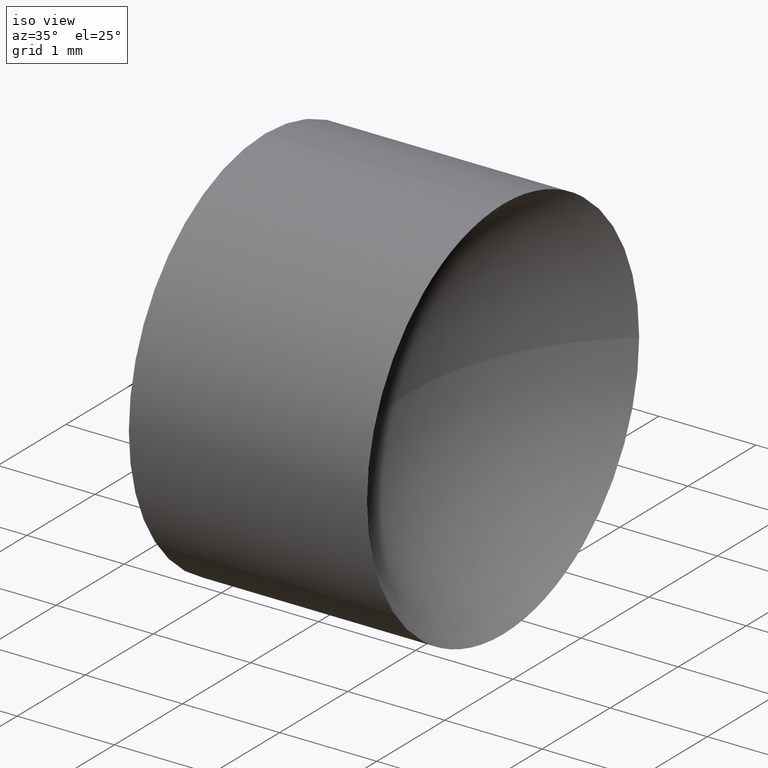
[diagram: clean part render]
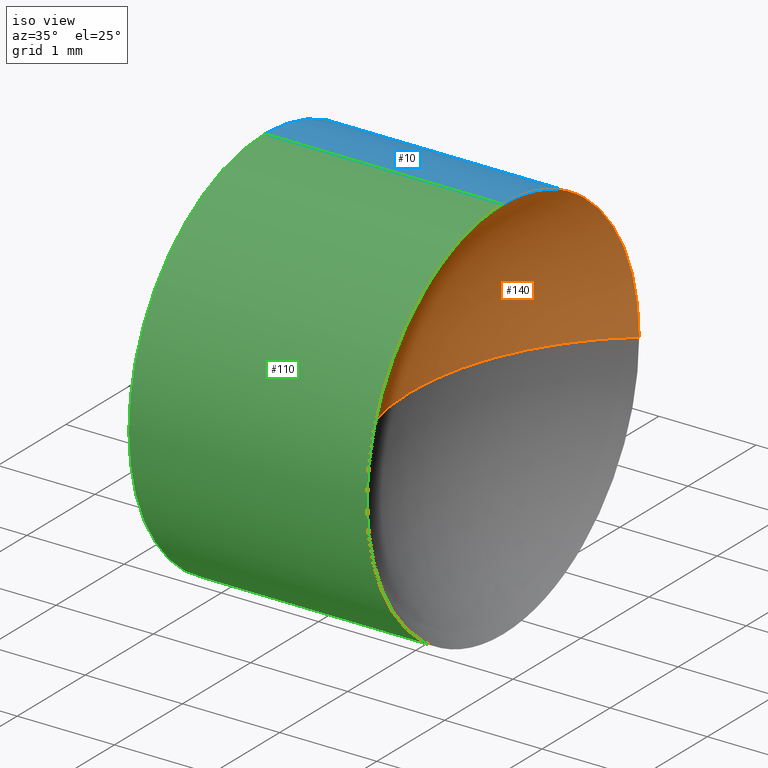
[diagram: same view with three faces highlighted in distinct colors, each labeled with its STEP entity id]
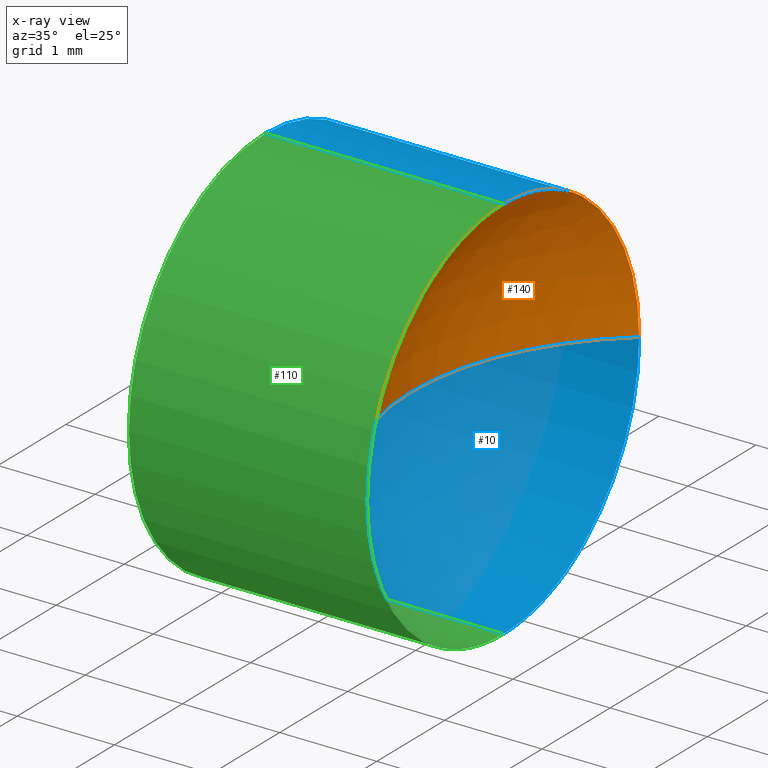
[diagram: x-ray of the same camera — body ghosted, the three highlighted faces saturated]
A machine part, iso view with three faces highlighted in distinct colors.
The next image is the same camera in x-ray (body ghosted, the three faces saturated) — at least one of them is partly hidden behind the body in this view.
Their STEP definitions:

[orange] entity #140 — the highlighted spherical surface has radius 2.5803 mm.
#2 = CARTESIAN_POINT ( 'NONE',  ( 13.53286323056900100, 8.522260287298740500, 2.449293598294707900E-016 ) ) ;
#7 = EDGE_CURVE ( 'NONE', #116, #88, #74, .T. ) ;
#9 = CARTESIAN_POINT ( 'NONE',  ( 13.53286323056900100, 6.522260287298739600, 0.0000000000000000000 ) ) ;
#24 = DIRECTION ( 'NONE',  ( -1.000000000000000000, -0.0000000000000000000, -0.0000000000000000000 ) ) ;
#25 = AXIS2_PLACEMENT_3D ( 'NONE', #127, #30, #43 ) ;
#28 = CIRCLE ( 'NONE', #83, 2.000000000000000900 ) ;
#30 = DIRECTION ( 'NONE',  ( 0.0000000000000000000, -1.224646799147353200E-016, 1.000000000000000000 ) ) ;
#32 = DIRECTION ( 'NONE',  ( 0.0000000000000000000, -1.000000000000000000, 0.0000000000000000000 ) ) ;
#43 = DIRECTION ( 'NONE',  ( 0.0000000000000000000, -1.000000000000000000, -1.224646799147353500E-016 ) ) ;
#46 = ORIENTED_EDGE ( 'NONE', *, *, #7, .F. ) ;
#60 = CIRCLE ( 'NONE', #25, 2.580263157894739900 ) ;
#63 = CARTESIAN_POINT ( 'NONE',  ( 13.53286323056900100, 6.522260287298739600, 2.000000000000000900 ) ) ;
#67 = CARTESIAN_POINT ( 'NONE',  ( 13.53286323056900100, 6.522260287298739600, 0.0000000000000000000 ) ) ;
#68 = EDGE_CURVE ( 'NONE', #163, #134, #60, .T. ) ;
#73 = AXIS2_PLACEMENT_3D ( 'NONE', #9, #24, #136 ) ;
#74 = CIRCLE ( 'NONE', #73, 2.000000000000000900 ) ;
#78 = SPHERICAL_SURFACE ( 'NONE', #157, 2.580263157894739900 ) ;
#83 = AXIS2_PLACEMENT_3D ( 'NONE', #67, #164, #148 ) ;
#84 = EDGE_CURVE ( 'NONE', #116, #134, #99, .T. ) ;
#86 = CARTESIAN_POINT ( 'NONE',  ( 13.53286323056900100, 4.522260287298738700, 0.0000000000000000000 ) ) ;
#88 = VERTEX_POINT ( 'NONE', #63 ) ;
#90 = DIRECTION ( 'NONE',  ( -1.000000000000000000, 0.0000000000000000000, 0.0000000000000000000 ) ) ;
#91 = DIRECTION ( 'NONE',  ( 0.0000000000000000000, 0.0000000000000000000, 1.000000000000000000 ) ) ;
#99 = CIRCLE ( 'NONE', #128, 2.580263157894739900 ) ;
#102 = CARTESIAN_POINT ( 'NONE',  ( 15.16312638846374100, 6.522260287298739600, 0.0000000000000000000 ) ) ;
#114 = CARTESIAN_POINT ( 'NONE',  ( 12.58286323056900200, 6.522260287298739600, 0.0000000000000000000 ) ) ;
#116 = VERTEX_POINT ( 'NONE', #86 ) ;
#122 = ORIENTED_EDGE ( 'NONE', *, *, #183, .F. ) ;
#124 = ORIENTED_EDGE ( 'NONE', *, *, #68, .F. ) ;
#127 = CARTESIAN_POINT ( 'NONE',  ( 15.16312638846374100, 6.522260287298739600, 0.0000000000000000000 ) ) ;
#128 = AXIS2_PLACEMENT_3D ( 'NONE', #129, #158, #90 ) ;
#129 = CARTESIAN_POINT ( 'NONE',  ( 15.16312638846374100, 6.522260287298739600, 0.0000000000000000000 ) ) ;
#134 = VERTEX_POINT ( 'NONE', #114 ) ;
#136 = DIRECTION ( 'NONE',  ( 0.0000000000000000000, 0.0000000000000000000, 1.000000000000000000 ) ) ;
#140 = ADVANCED_FACE ( 'NONE', ( #154 ), #78, .F. ) ;
#148 = DIRECTION ( 'NONE',  ( 0.0000000000000000000, 0.0000000000000000000, 1.000000000000000000 ) ) ;
#154 = FACE_OUTER_BOUND ( 'NONE', #170, .T. ) ;
#157 = AXIS2_PLACEMENT_3D ( 'NONE', #102, #91, #32 ) ;
#158 = DIRECTION ( 'NONE',  ( 0.0000000000000000000, 0.0000000000000000000, -1.000000000000000000 ) ) ;
#163 = VERTEX_POINT ( 'NONE', #2 ) ;
#164 = DIRECTION ( 'NONE',  ( -1.000000000000000000, -0.0000000000000000000, -0.0000000000000000000 ) ) ;
#170 = EDGE_LOOP ( 'NONE', ( #124, #122, #46, #175 ) ) ;
#175 = ORIENTED_EDGE ( 'NONE', *, *, #84, .T. ) ;
#183 = EDGE_CURVE ( 'NONE', #88, #163, #28, .T. ) ;

[blue] entity #10 — the highlighted cylindrical surface (partial cylindrical patch) has radius 2 mm, axis along (-1, -0, -0).
#2 = CARTESIAN_POINT ( 'NONE',  ( 13.53286323056900100, 8.522260287298740500, 2.449293598294707900E-016 ) ) ;
#3 = EDGE_CURVE ( 'NONE', #4, #52, #174, .T. ) ;
#4 = VERTEX_POINT ( 'NONE', #166 ) ;
#10 = ADVANCED_FACE ( 'NONE', ( #103 ), #34, .T. ) ;
#12 = EDGE_LOOP ( 'NONE', ( #14, #97, #159, #161, #23 ) ) ;
#14 = ORIENTED_EDGE ( 'NONE', *, *, #77, .T. ) ;
#21 = DIRECTION ( 'NONE',  ( -1.000000000000000000, -0.0000000000000000000, -0.0000000000000000000 ) ) ;
#23 = ORIENTED_EDGE ( 'NONE', *, *, #183, .T. ) ;
#28 = CIRCLE ( 'NONE', #83, 2.000000000000000900 ) ;
#29 = VECTOR ( 'NONE', #49, 1000.000000000000000 ) ;
#34 = CYLINDRICAL_SURFACE ( 'NONE', #118, 2.000000000000000900 ) ;
#36 = CARTESIAN_POINT ( 'NONE',  ( 11.08286323056900400, 6.522260287298739600, -2.000000000000000900 ) ) ;
#37 = CARTESIAN_POINT ( 'NONE',  ( 10.61246527853420600, 6.522260287298739600, 0.0000000000000000000 ) ) ;
#45 = CARTESIAN_POINT ( 'NONE',  ( 11.08286323056900400, 6.522260287298739600, 2.000000000000000900 ) ) ;
#47 = CARTESIAN_POINT ( 'NONE',  ( 10.61246527853420600, 6.522260287298739600, 2.000000000000000900 ) ) ;
#49 = DIRECTION ( 'NONE',  ( -1.000000000000000000, -0.0000000000000000000, -0.0000000000000000000 ) ) ;
#52 = VERTEX_POINT ( 'NONE', #36 ) ;
#53 = AXIS2_PLACEMENT_3D ( 'NONE', #81, #55, #54 ) ;
#54 = DIRECTION ( 'NONE',  ( 0.0000000000000000000, 0.0000000000000000000, 1.000000000000000000 ) ) ;
#55 = DIRECTION ( 'NONE',  ( -1.000000000000000000, -0.0000000000000000000, -0.0000000000000000000 ) ) ;
#56 = DIRECTION ( 'NONE',  ( 0.0000000000000000000, 0.0000000000000000000, 1.000000000000000000 ) ) ;
#63 = CARTESIAN_POINT ( 'NONE',  ( 13.53286323056900100, 6.522260287298739600, 2.000000000000000900 ) ) ;
#66 = VECTOR ( 'NONE', #146, 1000.000000000000000 ) ;
#67 = CARTESIAN_POINT ( 'NONE',  ( 13.53286323056900100, 6.522260287298739600, 0.0000000000000000000 ) ) ;
#69 = CIRCLE ( 'NONE', #100, 2.000000000000000900 ) ;
#72 = DIRECTION ( 'NONE',  ( -1.000000000000000000, -0.0000000000000000000, -0.0000000000000000000 ) ) ;
#77 = EDGE_CURVE ( 'NONE', #163, #4, #184, .T. ) ;
#79 = CARTESIAN_POINT ( 'NONE',  ( 11.08286323056900400, 6.522260287298739600, 0.0000000000000000000 ) ) ;
#81 = CARTESIAN_POINT ( 'NONE',  ( 13.53286323056900100, 6.522260287298739600, 0.0000000000000000000 ) ) ;
#83 = AXIS2_PLACEMENT_3D ( 'NONE', #67, #164, #148 ) ;
#88 = VERTEX_POINT ( 'NONE', #63 ) ;
#92 = VERTEX_POINT ( 'NONE', #45 ) ;
#97 = ORIENTED_EDGE ( 'NONE', *, *, #3, .T. ) ;
#100 = AXIS2_PLACEMENT_3D ( 'NONE', #79, #21, #181 ) ;
#103 = FACE_OUTER_BOUND ( 'NONE', #12, .T. ) ;
#117 = CARTESIAN_POINT ( 'NONE',  ( 10.61246527853420600, 6.522260287298739600, -2.000000000000000900 ) ) ;
#118 = AXIS2_PLACEMENT_3D ( 'NONE', #37, #72, #56 ) ;
#146 = DIRECTION ( 'NONE',  ( -1.000000000000000000, -0.0000000000000000000, -0.0000000000000000000 ) ) ;
#148 = DIRECTION ( 'NONE',  ( 0.0000000000000000000, 0.0000000000000000000, 1.000000000000000000 ) ) ;
#159 = ORIENTED_EDGE ( 'NONE', *, *, #177, .F. ) ;
#161 = ORIENTED_EDGE ( 'NONE', *, *, #172, .F. ) ;
#163 = VERTEX_POINT ( 'NONE', #2 ) ;
#164 = DIRECTION ( 'NONE',  ( -1.000000000000000000, -0.0000000000000000000, -0.0000000000000000000 ) ) ;
#166 = CARTESIAN_POINT ( 'NONE',  ( 13.53286323056900100, 6.522260287298739600, -2.000000000000000900 ) ) ;
#172 = EDGE_CURVE ( 'NONE', #88, #92, #180, .T. ) ;
#174 = LINE ( 'NONE', #117, #29 ) ;
#177 = EDGE_CURVE ( 'NONE', #92, #52, #69, .T. ) ;
#180 = LINE ( 'NONE', #47, #66 ) ;
#181 = DIRECTION ( 'NONE',  ( 0.0000000000000000000, 0.0000000000000000000, 1.000000000000000000 ) ) ;
#183 = EDGE_CURVE ( 'NONE', #88, #163, #28, .T. ) ;
#184 = CIRCLE ( 'NONE', #53, 2.000000000000000900 ) ;

[green] entity #110 — the highlighted cylindrical surface (partial cylindrical patch) has radius 2 mm, axis along (-1, -0, -0).
#1 = CYLINDRICAL_SURFACE ( 'NONE', #16, 2.000000000000000900 ) ;
#3 = EDGE_CURVE ( 'NONE', #4, #52, #174, .T. ) ;
#4 = VERTEX_POINT ( 'NONE', #166 ) ;
#7 = EDGE_CURVE ( 'NONE', #116, #88, #74, .T. ) ;
#9 = CARTESIAN_POINT ( 'NONE',  ( 13.53286323056900100, 6.522260287298739600, 0.0000000000000000000 ) ) ;
#16 = AXIS2_PLACEMENT_3D ( 'NONE', #31, #144, #76 ) ;
#17 = EDGE_CURVE ( 'NONE', #52, #92, #106, .T. ) ;
#24 = DIRECTION ( 'NONE',  ( -1.000000000000000000, -0.0000000000000000000, -0.0000000000000000000 ) ) ;
#29 = VECTOR ( 'NONE', #49, 1000.000000000000000 ) ;
#31 = CARTESIAN_POINT ( 'NONE',  ( 10.61246527853420600, 6.522260287298739600, 0.0000000000000000000 ) ) ;
#36 = CARTESIAN_POINT ( 'NONE',  ( 11.08286323056900400, 6.522260287298739600, -2.000000000000000900 ) ) ;
#40 = AXIS2_PLACEMENT_3D ( 'NONE', #152, #151, #168 ) ;
#45 = CARTESIAN_POINT ( 'NONE',  ( 11.08286323056900400, 6.522260287298739600, 2.000000000000000900 ) ) ;
#47 = CARTESIAN_POINT ( 'NONE',  ( 10.61246527853420600, 6.522260287298739600, 2.000000000000000900 ) ) ;
#48 = DIRECTION ( 'NONE',  ( 0.0000000000000000000, 0.0000000000000000000, 1.000000000000000000 ) ) ;
#49 = DIRECTION ( 'NONE',  ( -1.000000000000000000, -0.0000000000000000000, -0.0000000000000000000 ) ) ;
#52 = VERTEX_POINT ( 'NONE', #36 ) ;
#62 = EDGE_CURVE ( 'NONE', #4, #116, #95, .T. ) ;
#63 = CARTESIAN_POINT ( 'NONE',  ( 13.53286323056900100, 6.522260287298739600, 2.000000000000000900 ) ) ;
#66 = VECTOR ( 'NONE', #146, 1000.000000000000000 ) ;
#70 = FACE_OUTER_BOUND ( 'NONE', #111, .T. ) ;
#71 = CARTESIAN_POINT ( 'NONE',  ( 13.53286323056900100, 6.522260287298739600, 0.0000000000000000000 ) ) ;
#73 = AXIS2_PLACEMENT_3D ( 'NONE', #9, #24, #136 ) ;
#74 = CIRCLE ( 'NONE', #73, 2.000000000000000900 ) ;
#76 = DIRECTION ( 'NONE',  ( 0.0000000000000000000, 0.0000000000000000000, 1.000000000000000000 ) ) ;
#80 = ORIENTED_EDGE ( 'NONE', *, *, #7, .T. ) ;
#86 = CARTESIAN_POINT ( 'NONE',  ( 13.53286323056900100, 4.522260287298738700, 0.0000000000000000000 ) ) ;
#88 = VERTEX_POINT ( 'NONE', #63 ) ;
#89 = ORIENTED_EDGE ( 'NONE', *, *, #3, .F. ) ;
#92 = VERTEX_POINT ( 'NONE', #45 ) ;
#95 = CIRCLE ( 'NONE', #149, 2.000000000000000900 ) ;
#106 = CIRCLE ( 'NONE', #40, 2.000000000000000900 ) ;
#110 = ADVANCED_FACE ( 'NONE', ( #70 ), #1, .T. ) ;
#111 = EDGE_LOOP ( 'NONE', ( #89, #120, #80, #155, #156 ) ) ;
#116 = VERTEX_POINT ( 'NONE', #86 ) ;
#117 = CARTESIAN_POINT ( 'NONE',  ( 10.61246527853420600, 6.522260287298739600, -2.000000000000000900 ) ) ;
#120 = ORIENTED_EDGE ( 'NONE', *, *, #62, .T. ) ;
#136 = DIRECTION ( 'NONE',  ( 0.0000000000000000000, 0.0000000000000000000, 1.000000000000000000 ) ) ;
#144 = DIRECTION ( 'NONE',  ( -1.000000000000000000, -0.0000000000000000000, -0.0000000000000000000 ) ) ;
#146 = DIRECTION ( 'NONE',  ( -1.000000000000000000, -0.0000000000000000000, -0.0000000000000000000 ) ) ;
#149 = AXIS2_PLACEMENT_3D ( 'NONE', #71, #167, #48 ) ;
#151 = DIRECTION ( 'NONE',  ( -1.000000000000000000, -0.0000000000000000000, -0.0000000000000000000 ) ) ;
#152 = CARTESIAN_POINT ( 'NONE',  ( 11.08286323056900400, 6.522260287298739600, 0.0000000000000000000 ) ) ;
#155 = ORIENTED_EDGE ( 'NONE', *, *, #172, .T. ) ;
#156 = ORIENTED_EDGE ( 'NONE', *, *, #17, .F. ) ;
#166 = CARTESIAN_POINT ( 'NONE',  ( 13.53286323056900100, 6.522260287298739600, -2.000000000000000900 ) ) ;
#167 = DIRECTION ( 'NONE',  ( -1.000000000000000000, -0.0000000000000000000, -0.0000000000000000000 ) ) ;
#168 = DIRECTION ( 'NONE',  ( 0.0000000000000000000, 0.0000000000000000000, 1.000000000000000000 ) ) ;
#172 = EDGE_CURVE ( 'NONE', #88, #92, #180, .T. ) ;
#174 = LINE ( 'NONE', #117, #29 ) ;
#180 = LINE ( 'NONE', #47, #66 ) ;